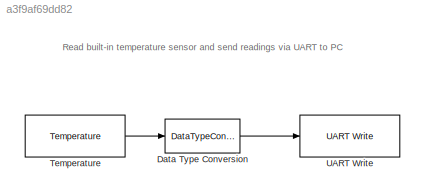
MODEL slx_a3f9af69dd82
KIND model
BLOCK [DataTypeConversion] Data Type Conversion
  RndMeth = Floor
  SaturateOnIntegerOverflow = off
BLOCK [Reference] Temperature  REF=stellaris_lib/ADC/Temperature
  AttributesFormatString = %<SParameter1>
  Ports = [0, 1]
  SParameter1 = Celsius
  SourceBlock = stellaris_lib/ADC/Temperature
  SourceType = Temperature Sensor
BLOCK [Reference] UART Write  REF=stellaris_lib/UART/UART Write
  Ports = [1]
  SourceBlock = stellaris_lib/UART/UART Write
  SourceType = UART Write
  nbFlag = on
ANNOTATION (root): Read built-in temperature sensor and send readings via UART to PC
LINE Data Type Conversion:1 -> UART Write:1
LINE Temperature:1 -> Data Type Conversion:1
